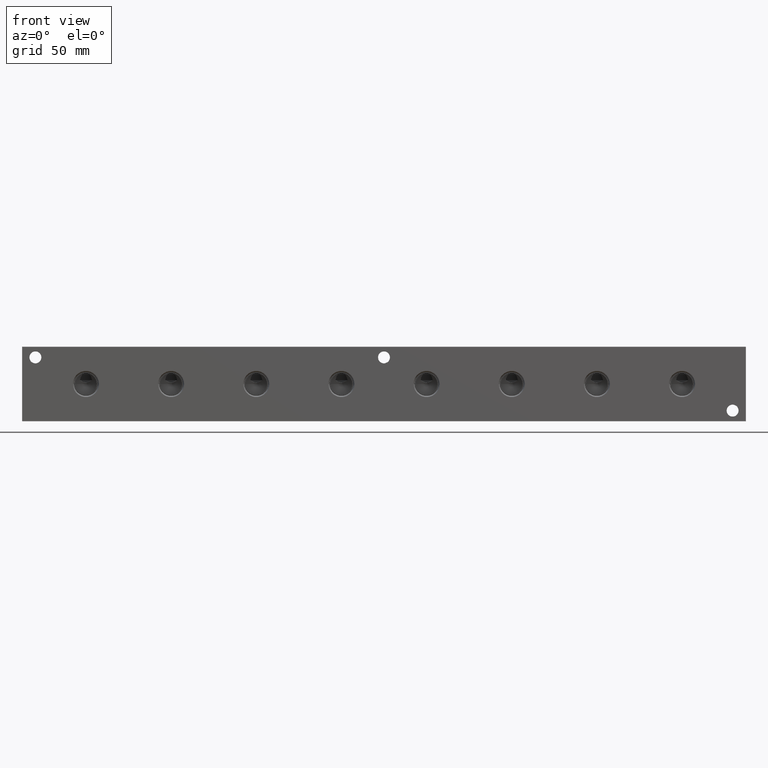
[diagram: clean part render]
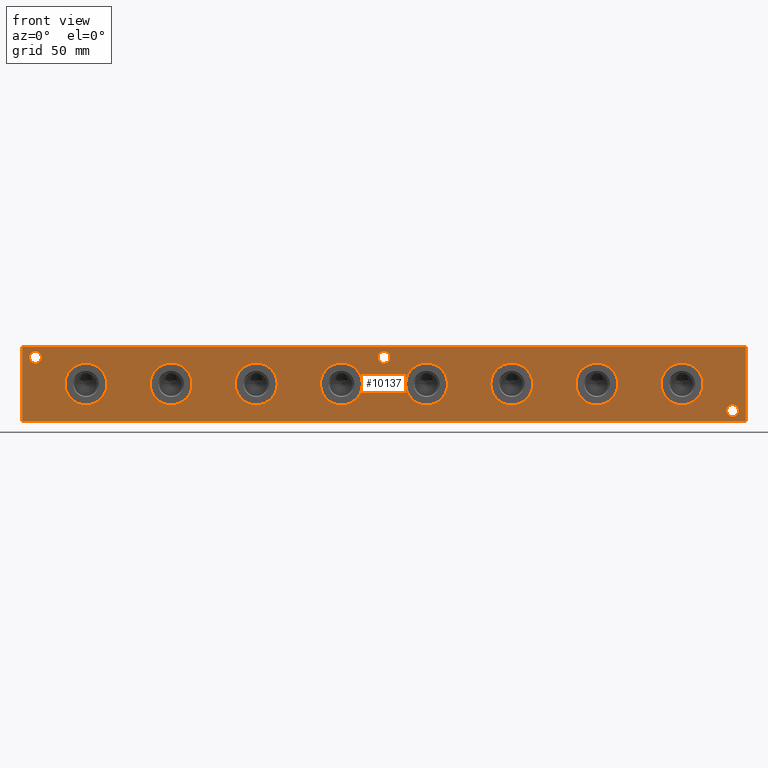
[diagram: same view with one face highlighted and labeled with its STEP entity id]
A machine part, front view. The second image highlights one B-rep face of the part: STEP entity #10137.
In plain terms, the highlighted planar face has unit normal (0, -1, 0).
Its self-contained STEP definition (entity closure, byte-faithful):
#206=CIRCLE('',#10370,3.5687);
#207=CIRCLE('',#10371,3.5687);
#209=CIRCLE('',#10380,3.5687);
#210=CIRCLE('',#10381,3.5687);
#212=CIRCLE('',#10389,3.5687);
#213=CIRCLE('',#10390,3.5687);
#215=CIRCLE('',#10400,12.5095);
#216=CIRCLE('',#10401,12.5095);
#226=CIRCLE('',#10416,12.5095);
#227=CIRCLE('',#10417,12.5095);
#237=CIRCLE('',#10432,12.5095);
#238=CIRCLE('',#10433,12.5095);
#248=CIRCLE('',#10448,12.5095);
#249=CIRCLE('',#10449,12.5095);
#259=CIRCLE('',#10464,12.5095);
#260=CIRCLE('',#10465,12.5095);
#270=CIRCLE('',#10480,12.5095);
#271=CIRCLE('',#10481,12.5095);
#281=CIRCLE('',#10496,12.5095);
#282=CIRCLE('',#10497,12.5095);
#373=CIRCLE('',#10649,12.5095);
#374=CIRCLE('',#10650,12.5095);
#604=FACE_BOUND('',#1977,.T.);
#605=FACE_BOUND('',#1978,.T.);
#606=FACE_BOUND('',#1979,.T.);
#607=FACE_BOUND('',#1980,.T.);
#608=FACE_BOUND('',#1981,.T.);
#609=FACE_BOUND('',#1982,.T.);
#610=FACE_BOUND('',#1983,.T.);
#611=FACE_BOUND('',#1984,.T.);
#612=FACE_BOUND('',#1985,.T.);
#613=FACE_BOUND('',#1986,.T.);
#614=FACE_BOUND('',#1987,.T.);
#850=PLANE('',#10894);
#1372=FACE_OUTER_BOUND('',#1976,.T.);
#1976=EDGE_LOOP('',(#9141,#9142,#9143,#9144));
#1977=EDGE_LOOP('',(#9145,#9146));
#1978=EDGE_LOOP('',(#9147,#9148));
#1979=EDGE_LOOP('',(#9149,#9150));
#1980=EDGE_LOOP('',(#9151,#9152));
#1981=EDGE_LOOP('',(#9153,#9154));
#1982=EDGE_LOOP('',(#9155,#9156));
#1983=EDGE_LOOP('',(#9157,#9158));
#1984=EDGE_LOOP('',(#9159,#9160));
#1985=EDGE_LOOP('',(#9161,#9162));
#1986=EDGE_LOOP('',(#9163,#9164));
#1987=EDGE_LOOP('',(#9165,#9166));
#2234=LINE('',#15710,#3006);
#2758=LINE('',#18189,#3530);
#2763=LINE('',#18198,#3535);
#2764=LINE('',#18200,#3536);
#3006=VECTOR('',#11242,10.);
#3530=VECTOR('',#13140,10.);
#3535=VECTOR('',#13149,10.);
#3536=VECTOR('',#13152,10.);
#4181=VERTEX_POINT('',#15708);
#4182=VERTEX_POINT('',#15709);
#4469=VERTEX_POINT('',#16670);
#4470=VERTEX_POINT('',#16671);
#4474=VERTEX_POINT('',#16688);
#4475=VERTEX_POINT('',#16689);
#4479=VERTEX_POINT('',#16704);
#4480=VERTEX_POINT('',#16705);
#4484=VERTEX_POINT('',#16724);
#4485=VERTEX_POINT('',#16725);
#4495=VERTEX_POINT('',#16755);
#4496=VERTEX_POINT('',#16756);
#4506=VERTEX_POINT('',#16786);
#4507=VERTEX_POINT('',#16787);
#4517=VERTEX_POINT('',#16817);
#4518=VERTEX_POINT('',#16818);
#4528=VERTEX_POINT('',#16848);
#4529=VERTEX_POINT('',#16849);
#4539=VERTEX_POINT('',#16879);
#4540=VERTEX_POINT('',#16880);
#4550=VERTEX_POINT('',#16910);
#4551=VERTEX_POINT('',#16911);
#4690=VERTEX_POINT('',#17719);
#4691=VERTEX_POINT('',#17720);
#4842=VERTEX_POINT('',#18187);
#4844=VERTEX_POINT('',#18196);
#5328=EDGE_CURVE('',#4181,#4182,#2234,.T.);
#5747=EDGE_CURVE('',#4469,#4470,#206,.T.);
#5748=EDGE_CURVE('',#4470,#4469,#207,.T.);
#5757=EDGE_CURVE('',#4474,#4475,#209,.T.);
#5758=EDGE_CURVE('',#4475,#4474,#210,.T.);
#5766=EDGE_CURVE('',#4479,#4480,#212,.T.);
#5767=EDGE_CURVE('',#4480,#4479,#213,.T.);
#5777=EDGE_CURVE('',#4484,#4485,#215,.T.);
#5778=EDGE_CURVE('',#4485,#4484,#216,.T.);
#5792=EDGE_CURVE('',#4495,#4496,#226,.T.);
#5793=EDGE_CURVE('',#4496,#4495,#227,.T.);
#5807=EDGE_CURVE('',#4506,#4507,#237,.T.);
#5808=EDGE_CURVE('',#4507,#4506,#238,.T.);
#5822=EDGE_CURVE('',#4517,#4518,#248,.T.);
#5823=EDGE_CURVE('',#4518,#4517,#249,.T.);
#5837=EDGE_CURVE('',#4528,#4529,#259,.T.);
#5838=EDGE_CURVE('',#4529,#4528,#260,.T.);
#5852=EDGE_CURVE('',#4539,#4540,#270,.T.);
#5853=EDGE_CURVE('',#4540,#4539,#271,.T.);
#5867=EDGE_CURVE('',#4550,#4551,#281,.T.);
#5868=EDGE_CURVE('',#4551,#4550,#282,.T.);
#6059=EDGE_CURVE('',#4690,#4691,#373,.T.);
#6060=EDGE_CURVE('',#4691,#4690,#374,.T.);
#6282=EDGE_CURVE('',#4842,#4181,#2758,.T.);
#6287=EDGE_CURVE('',#4844,#4182,#2763,.T.);
#6288=EDGE_CURVE('',#4842,#4844,#2764,.T.);
#9141=ORIENTED_EDGE('',*,*,#6288,.T.);
#9142=ORIENTED_EDGE('',*,*,#6287,.T.);
#9143=ORIENTED_EDGE('',*,*,#5328,.F.);
#9144=ORIENTED_EDGE('',*,*,#6282,.F.);
#9145=ORIENTED_EDGE('',*,*,#5747,.T.);
#9146=ORIENTED_EDGE('',*,*,#5748,.T.);
#9147=ORIENTED_EDGE('',*,*,#5757,.T.);
#9148=ORIENTED_EDGE('',*,*,#5758,.T.);
#9149=ORIENTED_EDGE('',*,*,#5766,.T.);
#9150=ORIENTED_EDGE('',*,*,#5767,.T.);
#9151=ORIENTED_EDGE('',*,*,#5777,.T.);
#9152=ORIENTED_EDGE('',*,*,#5778,.T.);
#9153=ORIENTED_EDGE('',*,*,#5792,.T.);
#9154=ORIENTED_EDGE('',*,*,#5793,.T.);
#9155=ORIENTED_EDGE('',*,*,#5807,.T.);
#9156=ORIENTED_EDGE('',*,*,#5808,.T.);
#9157=ORIENTED_EDGE('',*,*,#5822,.T.);
#9158=ORIENTED_EDGE('',*,*,#5823,.T.);
#9159=ORIENTED_EDGE('',*,*,#5837,.T.);
#9160=ORIENTED_EDGE('',*,*,#5838,.T.);
#9161=ORIENTED_EDGE('',*,*,#5852,.T.);
#9162=ORIENTED_EDGE('',*,*,#5853,.T.);
#9163=ORIENTED_EDGE('',*,*,#5867,.T.);
#9164=ORIENTED_EDGE('',*,*,#5868,.T.);
#9165=ORIENTED_EDGE('',*,*,#6059,.T.);
#9166=ORIENTED_EDGE('',*,*,#6060,.T.);
#10137=ADVANCED_FACE('',(#1372,#604,#605,#606,#607,#608,#609,#610,#611,
#612,#613,#614),#850,.T.);
#10370=AXIS2_PLACEMENT_3D('',#16672,#11953,#11954);
#10371=AXIS2_PLACEMENT_3D('',#16673,#11955,#11956);
#10380=AXIS2_PLACEMENT_3D('',#16690,#11976,#11977);
#10381=AXIS2_PLACEMENT_3D('',#16691,#11978,#11979);
#10389=AXIS2_PLACEMENT_3D('',#16706,#11996,#11997);
#10390=AXIS2_PLACEMENT_3D('',#16707,#11998,#11999);
#10400=AXIS2_PLACEMENT_3D('',#16726,#12022,#12023);
#10401=AXIS2_PLACEMENT_3D('',#16727,#12024,#12025);
#10416=AXIS2_PLACEMENT_3D('',#16757,#12058,#12059);
#10417=AXIS2_PLACEMENT_3D('',#16758,#12060,#12061);
#10432=AXIS2_PLACEMENT_3D('',#16788,#12094,#12095);
#10433=AXIS2_PLACEMENT_3D('',#16789,#12096,#12097);
#10448=AXIS2_PLACEMENT_3D('',#16819,#12130,#12131);
#10449=AXIS2_PLACEMENT_3D('',#16820,#12132,#12133);
#10464=AXIS2_PLACEMENT_3D('',#16850,#12166,#12167);
#10465=AXIS2_PLACEMENT_3D('',#16851,#12168,#12169);
#10480=AXIS2_PLACEMENT_3D('',#16881,#12202,#12203);
#10481=AXIS2_PLACEMENT_3D('',#16882,#12204,#12205);
#10496=AXIS2_PLACEMENT_3D('',#16912,#12238,#12239);
#10497=AXIS2_PLACEMENT_3D('',#16913,#12240,#12241);
#10649=AXIS2_PLACEMENT_3D('',#17721,#12580,#12581);
#10650=AXIS2_PLACEMENT_3D('',#17722,#12582,#12583);
#10894=AXIS2_PLACEMENT_3D('',#18199,#13150,#13151);
#11242=DIRECTION('',(1.,0.,0.));
#11953=DIRECTION('center_axis',(0.,1.,0.));
#11954=DIRECTION('ref_axis',(1.,0.,0.));
#11955=DIRECTION('center_axis',(0.,1.,0.));
#11956=DIRECTION('ref_axis',(1.,0.,0.));
#11976=DIRECTION('center_axis',(0.,1.,0.));
#11977=DIRECTION('ref_axis',(1.,0.,0.));
#11978=DIRECTION('center_axis',(0.,1.,0.));
#11979=DIRECTION('ref_axis',(1.,0.,0.));
#11996=DIRECTION('center_axis',(0.,1.,0.));
#11997=DIRECTION('ref_axis',(1.,0.,0.));
#11998=DIRECTION('center_axis',(0.,1.,0.));
#11999=DIRECTION('ref_axis',(1.,0.,0.));
#12022=DIRECTION('center_axis',(0.,1.,0.));
#12023=DIRECTION('ref_axis',(1.,0.,0.));
#12024=DIRECTION('center_axis',(0.,1.,0.));
#12025=DIRECTION('ref_axis',(1.,0.,0.));
#12058=DIRECTION('center_axis',(0.,1.,0.));
#12059=DIRECTION('ref_axis',(1.,0.,0.));
#12060=DIRECTION('center_axis',(0.,1.,0.));
#12061=DIRECTION('ref_axis',(1.,0.,0.));
#12094=DIRECTION('center_axis',(0.,1.,0.));
#12095=DIRECTION('ref_axis',(1.,0.,0.));
#12096=DIRECTION('center_axis',(0.,1.,0.));
#12097=DIRECTION('ref_axis',(1.,0.,0.));
#12130=DIRECTION('center_axis',(0.,1.,0.));
#12131=DIRECTION('ref_axis',(1.,0.,0.));
#12132=DIRECTION('center_axis',(0.,1.,0.));
#12133=DIRECTION('ref_axis',(1.,0.,0.));
#12166=DIRECTION('center_axis',(0.,1.,0.));
#12167=DIRECTION('ref_axis',(1.,0.,0.));
#12168=DIRECTION('center_axis',(0.,1.,0.));
#12169=DIRECTION('ref_axis',(1.,0.,0.));
#12202=DIRECTION('center_axis',(0.,1.,0.));
#12203=DIRECTION('ref_axis',(1.,0.,0.));
#12204=DIRECTION('center_axis',(0.,1.,0.));
#12205=DIRECTION('ref_axis',(1.,0.,0.));
#12238=DIRECTION('center_axis',(0.,1.,0.));
#12239=DIRECTION('ref_axis',(1.,0.,0.));
#12240=DIRECTION('center_axis',(0.,1.,0.));
#12241=DIRECTION('ref_axis',(1.,0.,0.));
#12580=DIRECTION('center_axis',(0.,1.,0.));
#12581=DIRECTION('ref_axis',(1.,0.,0.));
#12582=DIRECTION('center_axis',(0.,1.,0.));
#12583=DIRECTION('ref_axis',(1.,0.,0.));
#13140=DIRECTION('',(0.,0.,1.));
#13149=DIRECTION('',(0.,0.,1.));
#13150=DIRECTION('center_axis',(0.,-1.,0.));
#13151=DIRECTION('ref_axis',(1.,0.,0.));
#13152=DIRECTION('',(1.,0.,0.));
#15708=CARTESIAN_POINT('',(0.,0.,44.45));
#15709=CARTESIAN_POINT('',(431.8,0.,44.45));
#15710=CARTESIAN_POINT('',(0.,0.,44.45));
#16670=CARTESIAN_POINT('',(427.4439,0.,6.35));
#16671=CARTESIAN_POINT('',(420.3065,0.,6.35));
#16672=CARTESIAN_POINT('Origin',(423.8752,0.,6.35));
#16673=CARTESIAN_POINT('Origin',(423.8752,0.,6.35));
#16688=CARTESIAN_POINT('',(11.4935,0.,38.1));
#16689=CARTESIAN_POINT('',(4.3561,0.,38.1));
#16690=CARTESIAN_POINT('Origin',(7.9248,0.,38.1));
#16691=CARTESIAN_POINT('Origin',(7.9248,0.,38.1));
#16704=CARTESIAN_POINT('',(219.4687,0.,38.1));
#16705=CARTESIAN_POINT('',(212.3313,0.,38.1));
#16706=CARTESIAN_POINT('Origin',(215.9,0.,38.1));
#16707=CARTESIAN_POINT('Origin',(215.9,0.,38.1));
#16724=CARTESIAN_POINT('',(406.2095,0.,22.225));
#16725=CARTESIAN_POINT('',(381.1905,0.,22.225));
#16726=CARTESIAN_POINT('Origin',(393.7,0.,22.225));
#16727=CARTESIAN_POINT('Origin',(393.7,0.,22.225));
#16755=CARTESIAN_POINT('',(355.4095,0.,22.225));
#16756=CARTESIAN_POINT('',(330.3905,0.,22.225));
#16757=CARTESIAN_POINT('Origin',(342.9,0.,22.225));
#16758=CARTESIAN_POINT('Origin',(342.9,0.,22.225));
#16786=CARTESIAN_POINT('',(304.6095,0.,22.225));
#16787=CARTESIAN_POINT('',(279.5905,0.,22.225));
#16788=CARTESIAN_POINT('Origin',(292.1,0.,22.225));
#16789=CARTESIAN_POINT('Origin',(292.1,0.,22.225));
#16817=CARTESIAN_POINT('',(253.8095,0.,22.225));
#16818=CARTESIAN_POINT('',(228.7905,0.,22.225));
#16819=CARTESIAN_POINT('Origin',(241.3,0.,22.225));
#16820=CARTESIAN_POINT('Origin',(241.3,0.,22.225));
#16848=CARTESIAN_POINT('',(203.0095,0.,22.225));
#16849=CARTESIAN_POINT('',(177.9905,0.,22.225));
#16850=CARTESIAN_POINT('Origin',(190.5,0.,22.225));
#16851=CARTESIAN_POINT('Origin',(190.5,0.,22.225));
#16879=CARTESIAN_POINT('',(152.2095,0.,22.225));
#16880=CARTESIAN_POINT('',(127.1905,0.,22.225));
#16881=CARTESIAN_POINT('Origin',(139.7,0.,22.225));
#16882=CARTESIAN_POINT('Origin',(139.7,0.,22.225));
#16910=CARTESIAN_POINT('',(101.4095,0.,22.225));
#16911=CARTESIAN_POINT('',(76.3905,0.,22.225));
#16912=CARTESIAN_POINT('Origin',(88.9,0.,22.225));
#16913=CARTESIAN_POINT('Origin',(88.9,0.,22.225));
#17719=CARTESIAN_POINT('',(50.6095,0.,22.225));
#17720=CARTESIAN_POINT('',(25.5905,0.,22.225));
#17721=CARTESIAN_POINT('Origin',(38.1,0.,22.225));
#17722=CARTESIAN_POINT('Origin',(38.1,0.,22.225));
#18187=CARTESIAN_POINT('',(0.,0.,0.));
#18189=CARTESIAN_POINT('',(0.,0.,0.));
#18196=CARTESIAN_POINT('',(431.8,0.,0.));
#18198=CARTESIAN_POINT('',(431.8,0.,0.));
#18199=CARTESIAN_POINT('Origin',(0.,0.,0.));
#18200=CARTESIAN_POINT('',(0.,0.,0.));